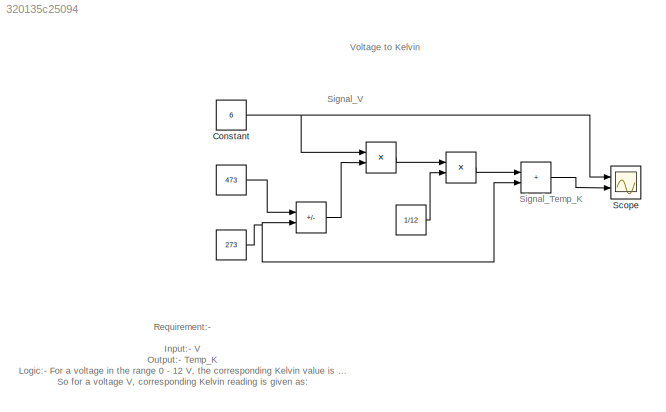
MODEL slx_320135c25094
KIND model
CONFIG AbsTol = auto
CONFIG EnableMultiTasking = on
CONFIG FixedStep = auto
CONFIG MaxStep = auto
CONFIG MinStep = auto
CONFIG RelTol = 1e-3
CONFIG SampleTimeConstraint = Unconstrained
CONFIG SolverName = ode45
CONFIG StartTime = 0.0
CONFIG StopTime = 10.0
BLOCK [Constant]  
  Value = 473
BLOCK [Constant]   
  Value = 273
BLOCK [Constant]    
  Value = 1/12
BLOCK [Product]     
  Ports = [2, 1]
BLOCK [Sum]      
  IconShape = rectangular
  Inputs = +-
  Ports = [2, 1]
BLOCK [Sum]       
  IconShape = rectangular
  Ports = [2, 1]
BLOCK [Product]        
  Ports = [2, 1]
BLOCK [Constant] Constant
  Value = 6
BLOCK [Scope] Scope
  Floating = off
  NumInputPorts = 2
  Ports = [2]
  ScopeSpecificationString = Simulink.scopes.TimeScopeBlockCfg('CurrentConfiguration', extmgr.ConfigurationSet(extmgr.Configuration('Core','General UI',true),extmgr.Configuration('Core','Source UI',true),extmgr.Configuration('Sources','WiredSimulink',true,'DataLoggingLimitDataPoints',true,'DataLoggingDecimation','1','DataLoggingDecimateData',true,'DataLoggingSaveFormat','Array'),extmgr.Configuration('Visuals','Time Domain',tr...<+1663ch>
ANNOTATION (root): Voltage to Kelvin
ANNOTATION (root): Requirement:- Input:- V Output:- Temp_K Logic:- For a voltage in the range 0 - 12 V, the corresponding Kelvin value is in the range 273 - 473 K So for a voltage V, corresponding Kelvin reading is given as: Temp_K= (473-273)*V/12 + 273.
ANNOTATION (root): Signal_Temp_K
ANNOTATION (root): Signal_V
LINE        :1 ->       :1
LINE       :1 -> Scope:2
LINE      :1 ->     :2
LINE     :1 ->        :1
LINE    :1 ->        :2
NET   :1 ->       :2,      :2
LINE  :1 ->      :1
NET Constant:1 ->     :1, Scope:1
note: NET lines group one-source signal fan-out (src -> all destinations, sorted); 1:1 wires keep LINE
